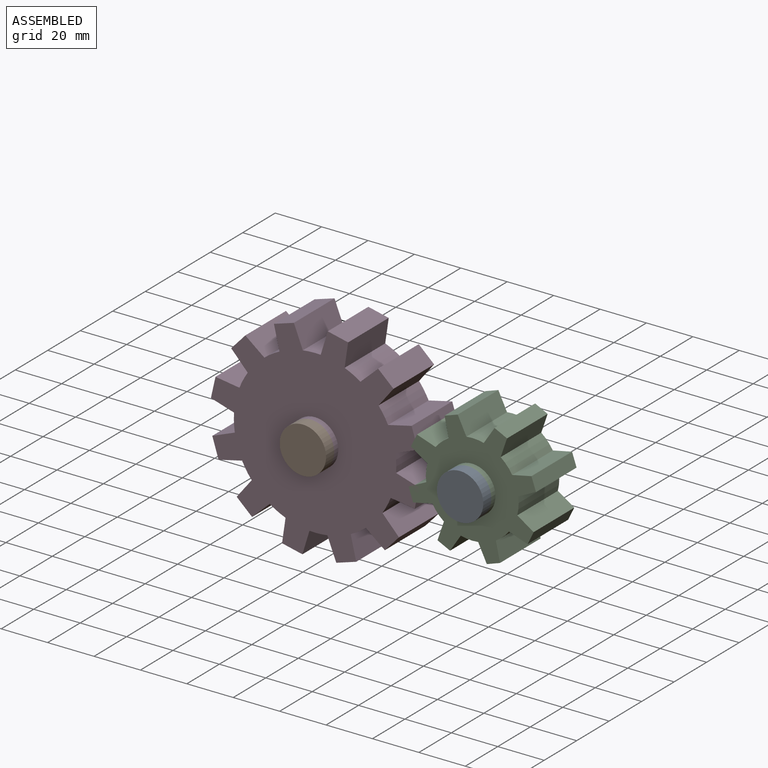
[diagram: assembled view]
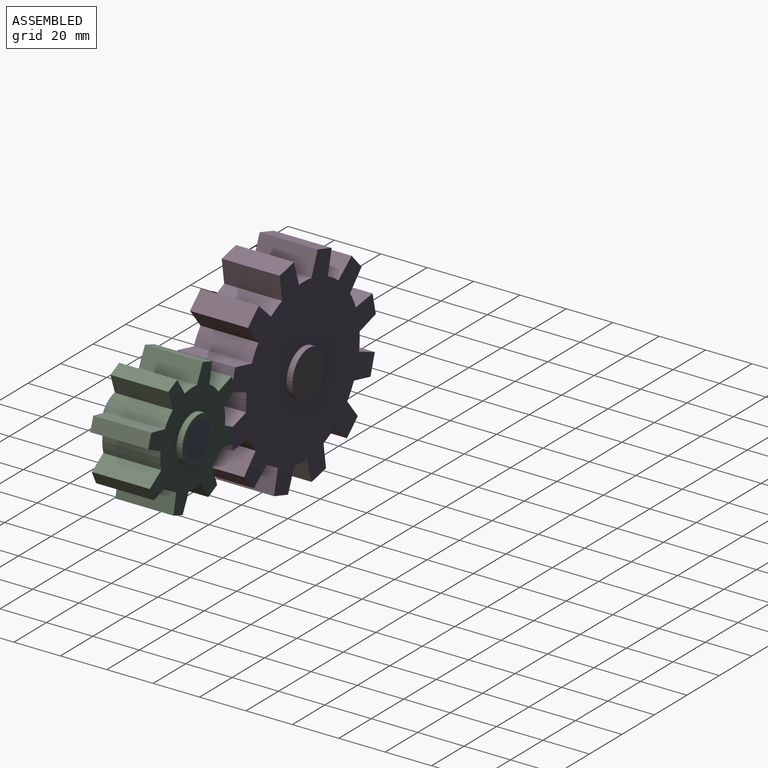
[diagram: assembled view, second angle]
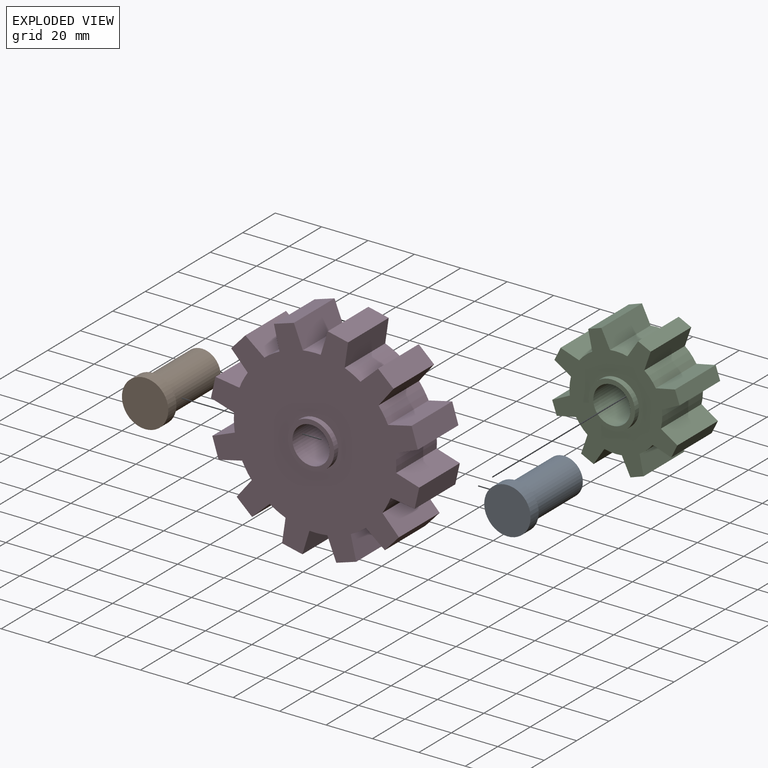
[diagram: exploded view]
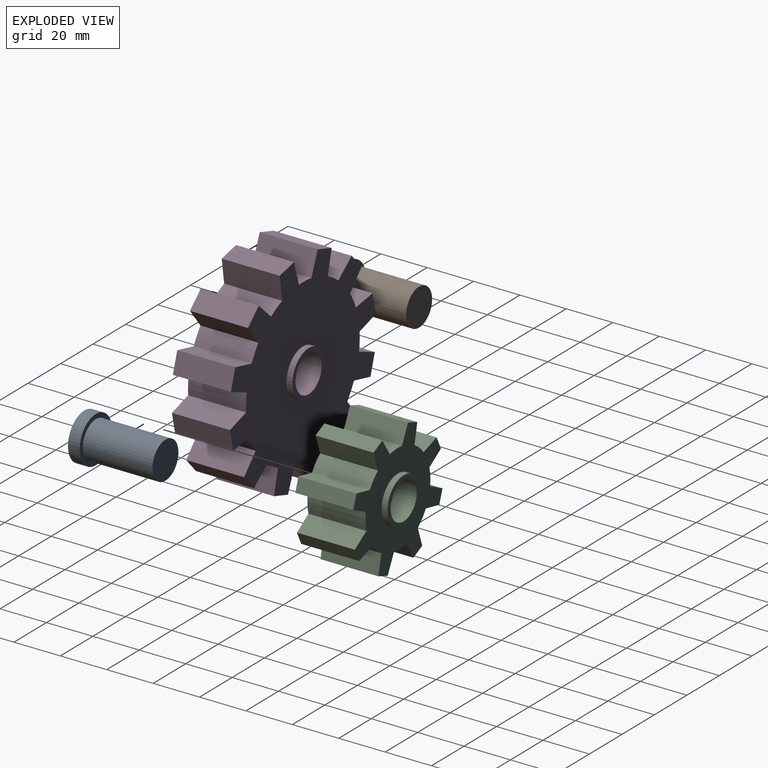
[diagram: exploded view, second angle]
ASSEMBLY  parts=4 mates=2
PART A: 5 faces, bbox 20x35x20 mm
  f0: cylinder r=8mm len=30mm, axis (0,1,0), area 1508mm2, adj f1,f4
  f1: plane 16x16mm, normal (0,1,0), area 201.1mm2, adj f0
  f2: cylinder r=10mm len=20mm, axis (0,1,0), area 314.2mm2, adj f3,f4
  f3: plane 20x20mm, normal (0,-1,0), area 314.2mm2, adj f2
  f4: plane 20x20mm, normal (0,1,0), area 113.1mm2, adj f0,f2
PART B: same geometry as A
PART C: 39 faces, bbox 56x30x56 mm
  f0: plane 25x6.69mm, normal (-0.79,0,-0.61), area 212mm2, adj f1,f31,f32,f33
  f1: cylinder r=20mm len=25mm, axis (0,1,0), area 188.7mm2, adj f0,f2,f32,f33
  f2: plane 25x8.41mm, normal (-0.12,0,0.99), area 212mm2, adj f1,f3,f32,f33
  f3: plane 25x6mm, normal (-1,0,0), area 150mm2, adj f2,f4,f32,f33
  f4: plane 25x8.41mm, normal (-0.12,0,-0.99), area 212mm2, adj f3,f5,f32,f33
  f5: cylinder r=20mm len=25mm, axis (0,1,0), area 188.7mm2, adj f4,f6,f32,f33
  f6: plane 25x6.69mm, normal (-0.79,0,0.61), area 212mm2, adj f5,f7,f32,f33
  f7: plane 25x4.24mm, normal (-0.71,0,-0.71), area 150mm2, adj f6,f8,f32,f33
  f8: plane 25x6.69mm, normal (0.61,0,-0.79), area 212mm2, adj f7,f9,f32,f33
  f9: cylinder r=20mm len=25mm, axis (0,1,0), area 188.7mm2, adj f8,f10,f32,f33
  f10: plane 25x8.41mm, normal (-0.99,0,-0.12), area 212mm2, adj f9,f11,f32,f33
  f11: plane 25x6mm, normal (0,0,-1), area 150mm2, adj f10,f12,f32,f33
  f12: plane 25x8.41mm, normal (0.99,0,-0.12), area 212mm2, adj f11,f13,f32,f33
  f13: cylinder r=20mm len=25mm, axis (0,1,0), area 188.7mm2, adj f12,f14,f32,f33
  f14: plane 25x6.69mm, normal (-0.61,0,-0.79), area 212mm2, adj f13,f15,f32,f33
  f15: plane 25x4.24mm, normal (0.71,0,-0.71), area 150mm2, adj f14,f16,f32,f33
  f16: plane 25x6.69mm, normal (0.79,0,0.61), area 212mm2, adj f15,f17,f32,f33
  f17: cylinder r=20mm len=25mm, axis (0,1,0), area 188.7mm2, adj f16,f18,f32,f33
  f18: plane 25x8.41mm, normal (0.12,0,-0.99), area 212mm2, adj f17,f19,f32,f33
  f19: plane 25x6mm, normal (1,0,0), area 150mm2, adj f18,f20,f32,f33
  f20: plane 25x8.41mm, normal (0.12,0,0.99), area 212mm2, adj f19,f21,f32,f33
  f21: cylinder r=20mm len=25mm, axis (0,1,0), area 188.7mm2, adj f20,f22,f32,f33
  f22: plane 25x6.69mm, normal (0.79,0,-0.61), area 212mm2, adj f21,f23,f32,f33
  f23: plane 25x4.24mm, normal (0.71,0,0.71), area 150mm2, adj f22,f24,f32,f33
  f24: plane 25x6.69mm, normal (-0.61,0,0.79), area 212mm2, adj f23,f25,f32,f33
  f25: cylinder r=20mm len=25mm, axis (0,1,0), area 188.7mm2, adj f24,f26,f32,f33
  f26: plane 25x8.41mm, normal (0.99,0,0.12), area 212mm2, adj f25,f27,f32,f33
  f27: plane 25x6mm, normal (0,0,1), area 150mm2, adj f26,f28,f32,f33
  f28: plane 25x8.41mm, normal (-0.99,0,0.12), area 212mm2, adj f27,f29,f32,f33
  f29: cylinder r=20mm len=25mm, axis (0,1,0), area 188.7mm2, adj f28,f30,f32,f33
  f30: plane 25x6.69mm, normal (0.61,0,0.79), area 212mm2, adj f29,f31,f32,f33
  f31: plane 25x4.24mm, normal (-0.71,0,0.71), area 150mm2, adj f0,f30,f32,f33
  f32: plane 56x56mm, normal (0,-1,0), area 1399.2mm2, adj f0,f1,f2,f3,f4,f5,f6,f7
  f33: plane 56x56mm, normal (0,1,0), area 1399.2mm2, adj f0,f1,f2,f3,f4,f5,f6,f7
  f34: cylinder r=10mm len=20mm, axis (0,1,0), area 157.1mm2, adj f33,f38
  f35: cylinder r=8mm len=30mm, axis (0,1,0), area 1508mm2, adj f37,f38
  f36: cylinder r=10mm len=20mm, axis (0,1,0), area 157.1mm2, adj f32,f37
  f37: plane 20x20mm, normal (0,-1,0), area 113.1mm2, adj f35,f36
  f38: plane 20x20mm, normal (0,1,0), area 113.1mm2, adj f34,f35
PART D: 55 faces, bbox 90x30x90 mm
  f0: plane 25x9.4mm, normal (-0.9,0,-0.43), area 260.7mm2, adj f1,f47,f48,f49
  f1: cylinder r=35mm len=25mm, axis (0,1,0), area 193.1mm2, adj f0,f2,f48,f49
  f2: plane 25x9.4mm, normal (0.43,0,0.9), area 260.7mm2, adj f1,f3,f48,f49
  f3: plane 25x7.79mm, normal (-0.87,0,0.5), area 225mm2, adj f2,f4,f48,f49
  f4: plane 25x8.62mm, normal (-0.56,0,-0.83), area 260.7mm2, adj f3,f5,f48,f49
  f5: cylinder r=35mm len=25mm, axis (0,1,0), area 193.1mm2, adj f4,f6,f48,f49
  f6: plane 25x10.4mm, normal (-0.07,0,1), area 260.7mm2, adj f5,f7,f48,f49
  f7: plane 25x9mm, normal (-1,0,0), area 225mm2, adj f6,f8,f48,f49
  f8: plane 25x10.4mm, normal (-0.07,0,-1), area 260.7mm2, adj f7,f9,f48,f49
  f9: cylinder r=35mm len=25mm, axis (0,1,0), area 193.1mm2, adj f8,f10,f48,f49
  f10: plane 25x8.62mm, normal (-0.56,0,0.83), area 260.7mm2, adj f9,f11,f48,f49
  f11: plane 25x7.79mm, normal (-0.87,0,-0.5), area 225mm2, adj f10,f12,f48,f49
  f12: plane 25x9.4mm, normal (0.43,0,-0.9), area 260.7mm2, adj f11,f13,f48,f49
  f13: cylinder r=35mm len=25mm, axis (0,1,0), area 193.1mm2, adj f12,f14,f48,f49
  f14: plane 25x9.4mm, normal (-0.9,0,0.43), area 260.7mm2, adj f13,f15,f48,f49
  f15: plane 25x7.79mm, normal (-0.5,0,-0.87), area 225mm2, adj f14,f16,f48,f49
  f16: plane 25x8.62mm, normal (0.83,0,-0.56), area 260.7mm2, adj f15,f17,f48,f49
  f17: cylinder r=35mm len=25mm, axis (0,1,0), area 193.1mm2, adj f16,f18,f48,f49
  f18: plane 25x10.4mm, normal (-1,0,-0.07), area 260.7mm2, adj f17,f19,f48,f49
  f19: plane 25x9mm, normal (0,0,-1), area 225mm2, adj f18,f20,f48,f49
  f20: plane 25x10.4mm, normal (1,0,-0.07), area 260.7mm2, adj f19,f21,f48,f49
  f21: cylinder r=35mm len=25mm, axis (0,1,0), area 193.1mm2, adj f20,f22,f48,f49
  f22: plane 25x8.62mm, normal (-0.83,0,-0.56), area 260.7mm2, adj f21,f23,f48,f49
  f23: plane 25x7.79mm, normal (0.5,0,-0.87), area 225mm2, adj f22,f24,f48,f49
  f24: plane 25x9.4mm, normal (0.9,0,0.43), area 260.7mm2, adj f23,f25,f48,f49
  f25: cylinder r=35mm len=25mm, axis (0,1,0), area 193.1mm2, adj f24,f26,f48,f49
  f26: plane 25x9.4mm, normal (-0.43,0,-0.9), area 260.7mm2, adj f25,f27,f48,f49
  f27: plane 25x7.79mm, normal (0.87,0,-0.5), area 225mm2, adj f26,f28,f48,f49
  f28: plane 25x8.62mm, normal (0.56,0,0.83), area 260.7mm2, adj f27,f29,f48,f49
  f29: cylinder r=35mm len=25mm, axis (0,1,0), area 193.1mm2, adj f28,f30,f48,f49
  f30: plane 25x10.4mm, normal (0.07,0,-1), area 260.7mm2, adj f29,f31,f48,f49
  f31: plane 25x9mm, normal (1,0,0), area 225mm2, adj f30,f32,f48,f49
  f32: plane 25x10.4mm, normal (0.07,0,1), area 260.7mm2, adj f31,f33,f48,f49
  f33: cylinder r=35mm len=25mm, axis (0,1,0), area 193.1mm2, adj f32,f34,f48,f49
  f34: plane 25x8.62mm, normal (0.56,0,-0.83), area 260.7mm2, adj f33,f35,f48,f49
  f35: plane 25x7.79mm, normal (0.87,0,0.5), area 225mm2, adj f34,f36,f48,f49
  f36: plane 25x9.4mm, normal (-0.43,0,0.9), area 260.7mm2, adj f35,f37,f48,f49
  f37: cylinder r=35mm len=25mm, axis (0,1,0), area 193.1mm2, adj f36,f38,f48,f49
  f38: plane 25x9.4mm, normal (0.9,0,-0.43), area 260.7mm2, adj f37,f39,f48,f49
  f39: plane 25x7.79mm, normal (0.5,0,0.87), area 225mm2, adj f38,f40,f48,f49
  f40: plane 25x8.62mm, normal (-0.83,0,0.56), area 260.7mm2, adj f39,f41,f48,f49
  f41: cylinder r=35mm len=25mm, axis (0,1,0), area 193.1mm2, adj f40,f42,f48,f49
  f42: plane 25x10.4mm, normal (1,0,0.07), area 260.7mm2, adj f41,f43,f48,f49
  f43: plane 25x9mm, normal (0,0,1), area 225mm2, adj f42,f44,f48,f49
  f44: plane 25x10.4mm, normal (-1,0,0.07), area 260.7mm2, adj f43,f45,f48,f49
  f45: cylinder r=35mm len=25mm, axis (0,1,0), area 193.1mm2, adj f44,f46,f48,f49
  f46: plane 25x8.62mm, normal (0.83,0,0.56), area 260.7mm2, adj f45,f47,f48,f49
  f47: plane 25x7.79mm, normal (-0.5,0,0.87), area 225mm2, adj f0,f46,f48,f49
  f48: plane 90x90mm, normal (0,-1,0), area 4721mm2, adj f0,f1,f2,f3,f4,f5,f6,f7
  f49: plane 90x90mm, normal (0,1,0), area 4721mm2, adj f0,f1,f2,f3,f4,f5,f6,f7
  f50: cylinder r=10mm len=20mm, axis (0,1,0), area 157.1mm2, adj f49,f54
  f51: cylinder r=8mm len=30mm, axis (0,1,0), area 1508mm2, adj f53,f54
  f52: cylinder r=10mm len=20mm, axis (0,1,0), area 157.1mm2, adj f48,f53
  f53: plane 20x20mm, normal (0,-1,0), area 113.1mm2, adj f51,f52
  f54: plane 20x20mm, normal (0,1,0), area 113.1mm2, adj f50,f51
PLACE A t=(67.75,0,0)mm fixed
PLACE B at identity fixed
PLACE C rot(axis=(0,-1,0),154deg) t=(67.75,0,0)mm
PLACE D rot(axis=(0,1,0),102.6deg) t=(0,0,0)mm
MATE revolute B.f0 <-> D.f51  axis (0,1,0) through (0,0,0)mm
MATE revolute A.f0 <-> C.f35  axis (0,1,0) through (67.75,0,0)mm
